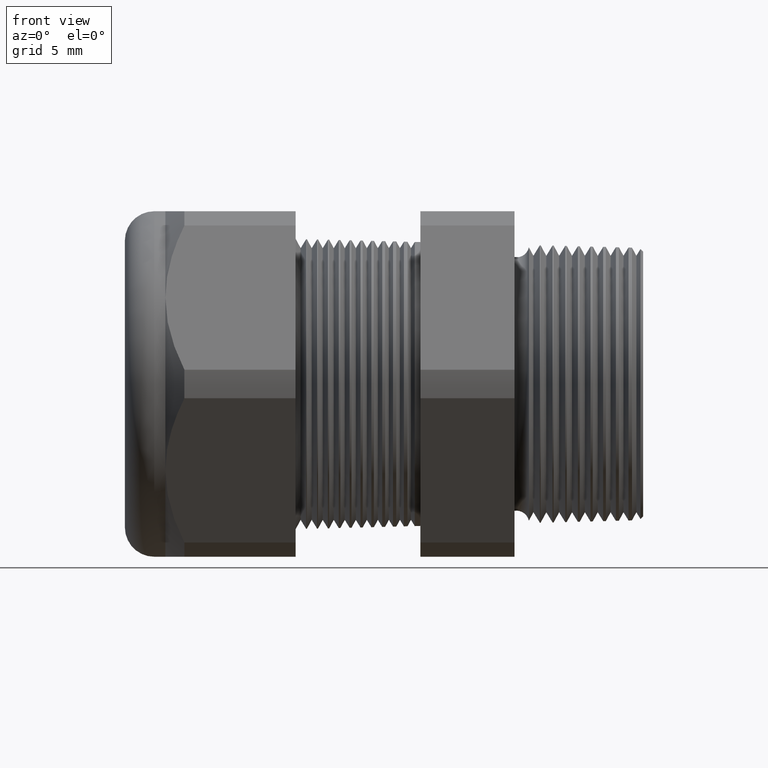
[diagram: clean part render]
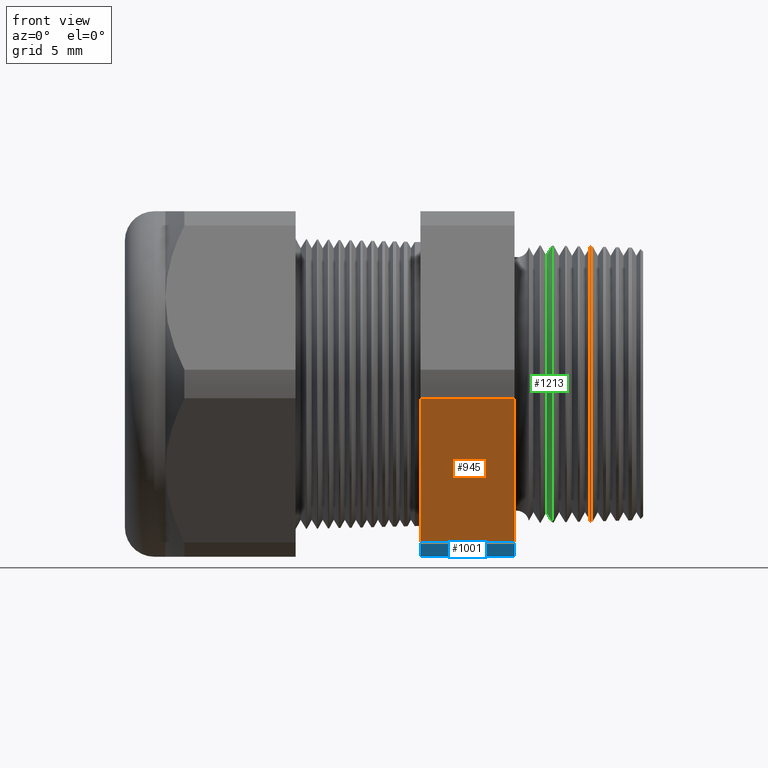
[diagram: same view with three faces highlighted in distinct colors, each labeled with its STEP entity id]
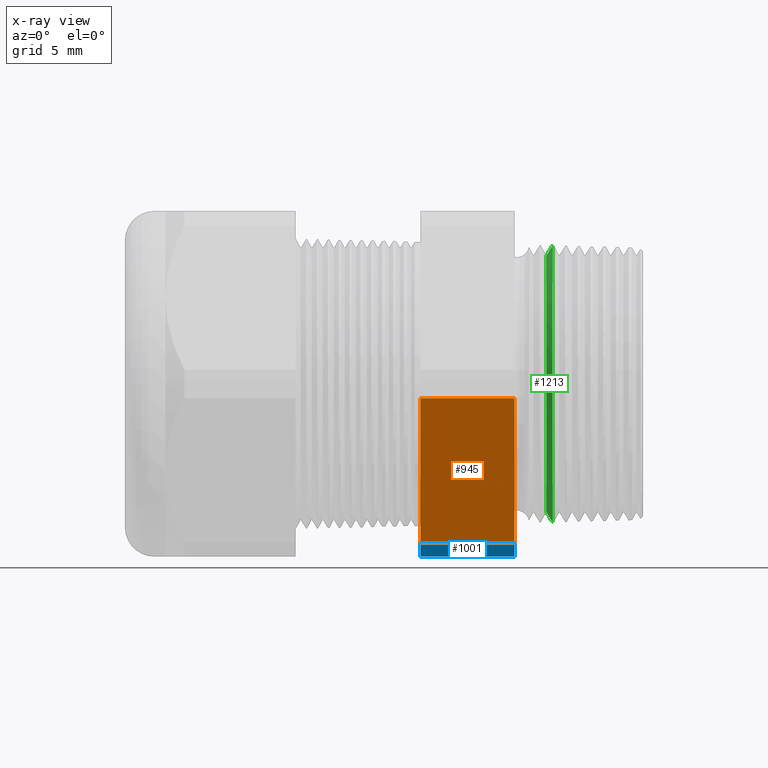
[diagram: x-ray of the same camera — body ghosted, the three highlighted faces saturated]
A machine part, front view with three faces highlighted in distinct colors.
The next image is the same camera in x-ray (body ghosted, the three faces saturated) — at least one of them is partly hidden behind the body in this view.
Their STEP definitions:

[orange] entity #945 — the highlighted planar face has unit normal (0, -0.866, -0.5).
#716 = VERTEX_POINT ( 'NONE', #2981 ) ;
#722 = EDGE_CURVE ( 'NONE', #716, #723, #2970, .T. ) ;
#723 = VERTEX_POINT ( 'NONE', #2966 ) ;
#819 = VERTEX_POINT ( 'NONE', #3174 ) ;
#821 = EDGE_CURVE ( 'NONE', #819, #822, #3173, .T. ) ;
#822 = VERTEX_POINT ( 'NONE', #3169 ) ;
#945 = ADVANCED_FACE ( 'NONE', ( #3356 ), #3355, .T. ) ;
#946 = EDGE_LOOP ( 'NONE', ( #996, #997, #998, #1000 ) ) ;
#996 = ORIENTED_EDGE ( 'NONE', *, *, #1018, .T. ) ;
#997 = ORIENTED_EDGE ( 'NONE', *, *, #821, .F. ) ;
#998 = ORIENTED_EDGE ( 'NONE', *, *, #999, .F. ) ;
#999 = EDGE_CURVE ( 'NONE', #723, #819, #3461, .T. ) ;
#1000 = ORIENTED_EDGE ( 'NONE', *, *, #722, .F. ) ;
#1018 = EDGE_CURVE ( 'NONE', #716, #822, #3438, .T. ) ;
#2667 = DIRECTION ( 'NONE',  ( -1.000000000000000000, 0.0000000000000000000, 0.0000000000000000000 ) ) ;
#2668 = VECTOR ( 'NONE', #2667, 39.37007874015748100 ) ;
#2966 = CARTESIAN_POINT ( 'NONE',  ( -0.3100000000000000000, -0.2938165587564942600, -0.4310947921287053300 ) ) ;
#2967 = DIRECTION ( 'NONE',  ( 0.0000000000000000000, 0.5000000000000001100, -0.8660254037844384900 ) ) ;
#2968 = VECTOR ( 'NONE', #2967, 39.37007874015748900 ) ;
#2969 = CARTESIAN_POINT ( 'NONE',  ( -0.3100000000000000000, -0.1720319397786861700, -0.6420319397786864400 ) ) ;
#2970 = LINE ( 'NONE', #2969, #2968 ) ;
#2981 = CARTESIAN_POINT ( 'NONE',  ( -0.3100000000000000000, -0.5202473208008777700, -0.03890520787129495000 ) ) ;
#3169 = CARTESIAN_POINT ( 'NONE',  ( -0.5659055118110235500, -0.5202473208008777700, -0.03890520787129495000 ) ) ;
#3170 = DIRECTION ( 'NONE',  ( 0.0000000000000000000, -0.5000000000000001100, 0.8660254037844384900 ) ) ;
#3171 = VECTOR ( 'NONE', #3170, 39.37007874015748900 ) ;
#3172 = CARTESIAN_POINT ( 'NONE',  ( -0.5659055118110235500, -0.1720319397786861700, -0.6420319397786864400 ) ) ;
#3173 = LINE ( 'NONE', #3172, #3171 ) ;
#3174 = CARTESIAN_POINT ( 'NONE',  ( -0.5659055118110235500, -0.2938165587564942600, -0.4310947921287053300 ) ) ;
#3351 = DIRECTION ( 'NONE',  ( 0.0000000000000000000, 0.5000000000000001100, -0.8660254037844384900 ) ) ;
#3352 = DIRECTION ( 'NONE',  ( 0.0000000000000000000, -0.8660254037844386000, -0.5000000000000002200 ) ) ;
#3353 = CARTESIAN_POINT ( 'NONE',  ( 0.03999999999999984800, -0.2938165587564944300, -0.4310947921287051600 ) ) ;
#3354 = AXIS2_PLACEMENT_3D ( 'NONE', #3353, #3352, #3351 ) ;
#3355 = PLANE ( 'NONE',  #3354 ) ;
#3356 = FACE_OUTER_BOUND ( 'NONE', #946, .T. ) ;
#3431 = CARTESIAN_POINT ( 'NONE',  ( 0.03999999999999984800, -0.5202473208008777700, -0.03890520787129495000 ) ) ;
#3438 = LINE ( 'NONE', #3431, #2668 ) ;
#3454 = DIRECTION ( 'NONE',  ( -1.000000000000000000, 0.0000000000000000000, 0.0000000000000000000 ) ) ;
#3455 = VECTOR ( 'NONE', #3454, 39.37007874015748100 ) ;
#3456 = CARTESIAN_POINT ( 'NONE',  ( 0.03999999999999984800, -0.2938165587564942600, -0.4310947921287053300 ) ) ;
#3461 = LINE ( 'NONE', #3456, #3455 ) ;

[blue] entity #1001 — the highlighted cylindrical surface (partial cylindrical patch) has radius 13.2512 mm, axis along (-1, 0, 0).
#723 = VERTEX_POINT ( 'NONE', #2966 ) ;
#727 = EDGE_CURVE ( 'NONE', #723, #729, #2963, .T. ) ;
#729 = VERTEX_POINT ( 'NONE', #3012 ) ;
#818 = EDGE_CURVE ( 'NONE', #902, #819, #3116, .T. ) ;
#819 = VERTEX_POINT ( 'NONE', #3174 ) ;
#902 = VERTEX_POINT ( 'NONE', #3280 ) ;
#985 = ORIENTED_EDGE ( 'NONE', *, *, #727, .F. ) ;
#999 = EDGE_CURVE ( 'NONE', #723, #819, #3461, .T. ) ;
#1001 = ADVANCED_FACE ( 'NONE', ( #3453 ), #3451, .T. ) ;
#1002 = EDGE_LOOP ( 'NONE', ( #1003, #1004, #1005, #985 ) ) ;
#1003 = ORIENTED_EDGE ( 'NONE', *, *, #999, .T. ) ;
#1004 = ORIENTED_EDGE ( 'NONE', *, *, #818, .F. ) ;
#1005 = ORIENTED_EDGE ( 'NONE', *, *, #1006, .F. ) ;
#1006 = EDGE_CURVE ( 'NONE', #729, #902, #3452, .T. ) ;
#2955 = DIRECTION ( 'NONE',  ( 0.0000000000000000000, 0.0000000000000000000, -1.000000000000000000 ) ) ;
#2956 = DIRECTION ( 'NONE',  ( 1.000000000000000000, 0.0000000000000000000, 0.0000000000000000000 ) ) ;
#2957 = CARTESIAN_POINT ( 'NONE',  ( -0.3100000000000000000, 0.0000000000000000000, 0.0000000000000000000 ) ) ;
#2958 = AXIS2_PLACEMENT_3D ( 'NONE', #2957, #2956, #2955 ) ;
#2963 = CIRCLE ( 'NONE', #2958, 0.5217000000000000500 ) ;
#2966 = CARTESIAN_POINT ( 'NONE',  ( -0.3100000000000000000, -0.2938165587564942600, -0.4310947921287053300 ) ) ;
#3012 = CARTESIAN_POINT ( 'NONE',  ( -0.3100000000000000000, -0.2264307620443830900, -0.4700000000000000300 ) ) ;
#3113 = DIRECTION ( 'NONE',  ( -1.000000000000000000, 0.0000000000000000000, 0.0000000000000000000 ) ) ;
#3114 = CARTESIAN_POINT ( 'NONE',  ( -0.5659055118110235500, 0.0000000000000000000, 0.0000000000000000000 ) ) ;
#3115 = AXIS2_PLACEMENT_3D ( 'NONE', #3114, #3113, #3175 ) ;
#3116 = CIRCLE ( 'NONE', #3115, 0.5217000000000000500 ) ;
#3174 = CARTESIAN_POINT ( 'NONE',  ( -0.5659055118110235500, -0.2938165587564942600, -0.4310947921287053300 ) ) ;
#3175 = DIRECTION ( 'NONE',  ( 0.0000000000000000000, 0.0000000000000000000, 1.000000000000000000 ) ) ;
#3280 = CARTESIAN_POINT ( 'NONE',  ( -0.5659055118110235500, -0.2264307620443830900, -0.4700000000000000300 ) ) ;
#3444 = DIRECTION ( 'NONE',  ( -1.000000000000000000, 0.0000000000000000000, 0.0000000000000000000 ) ) ;
#3445 = VECTOR ( 'NONE', #3444, 39.37007874015748100 ) ;
#3446 = CARTESIAN_POINT ( 'NONE',  ( 0.03999999999999984800, -0.2264307620443830900, -0.4700000000000000300 ) ) ;
#3447 = DIRECTION ( 'NONE',  ( 0.0000000000000000000, 0.0000000000000000000, 1.000000000000000000 ) ) ;
#3448 = DIRECTION ( 'NONE',  ( -1.000000000000000000, 0.0000000000000000000, 0.0000000000000000000 ) ) ;
#3449 = CARTESIAN_POINT ( 'NONE',  ( 0.03999999999999984800, 0.0000000000000000000, 0.0000000000000000000 ) ) ;
#3450 = AXIS2_PLACEMENT_3D ( 'NONE', #3449, #3448, #3447 ) ;
#3451 = CYLINDRICAL_SURFACE ( 'NONE', #3450, 0.5217000000000000500 ) ;
#3452 = LINE ( 'NONE', #3446, #3445 ) ;
#3453 = FACE_OUTER_BOUND ( 'NONE', #1002, .T. ) ;
#3454 = DIRECTION ( 'NONE',  ( -1.000000000000000000, 0.0000000000000000000, 0.0000000000000000000 ) ) ;
#3455 = VECTOR ( 'NONE', #3454, 39.37007874015748100 ) ;
#3456 = CARTESIAN_POINT ( 'NONE',  ( 0.03999999999999984800, -0.2938165587564942600, -0.4310947921287053300 ) ) ;
#3461 = LINE ( 'NONE', #3456, #3455 ) ;

[green] entity #1213 — the highlighted conical surface has half-angle 58.5 deg.
#455 = VERTEX_POINT ( 'NONE', #2361 ) ;
#491 = VERTEX_POINT ( 'NONE', #2455 ) ;
#510 = VERTEX_POINT ( 'NONE', #2544 ) ;
#521 = EDGE_CURVE ( 'NONE', #455, #522, #2523, .T. ) ;
#522 = VERTEX_POINT ( 'NONE', #2519 ) ;
#548 = EDGE_CURVE ( 'NONE', #510, #491, #2588, .T. ) ;
#1210 = EDGE_CURVE ( 'NONE', #455, #510, #3712, .T. ) ;
#1213 = ADVANCED_FACE ( 'NONE', ( #3707 ), #3706, .T. ) ;
#1214 = EDGE_LOOP ( 'NONE', ( #1215, #1216, #1217, #1218 ) ) ;
#1215 = ORIENTED_EDGE ( 'NONE', *, *, #521, .F. ) ;
#1216 = ORIENTED_EDGE ( 'NONE', *, *, #1210, .T. ) ;
#1217 = ORIENTED_EDGE ( 'NONE', *, *, #548, .T. ) ;
#1218 = ORIENTED_EDGE ( 'NONE', *, *, #4658, .T. ) ;
#2361 = CARTESIAN_POINT ( 'NONE',  ( -0.2234707356790752200, 0.0000000000000000000, 0.3489649185127733400 ) ) ;
#2455 = CARTESIAN_POINT ( 'NONE',  ( -0.2064763869881502400, 4.613209897288197600E-017, -0.3766971750957169300 ) ) ;
#2519 = CARTESIAN_POINT ( 'NONE',  ( -0.2064763869881502400, 0.0000000000000000000, 0.3766971750957169300 ) ) ;
#2520 = DIRECTION ( 'NONE',  ( 0.5224985647159352500, 1.044183048100722500E-016, 0.8526401643541005000 ) ) ;
#2521 = VECTOR ( 'NONE', #2520, 39.37007874015748900 ) ;
#2522 = CARTESIAN_POINT ( 'NONE',  ( -0.2234707356790752200, 4.273587704713848000E-017, 0.3489649185127733400 ) ) ;
#2523 = LINE ( 'NONE', #2522, #2521 ) ;
#2544 = CARTESIAN_POINT ( 'NONE',  ( -0.2234707356790752200, 4.448612179956702900E-017, -0.3489649185127733400 ) ) ;
#2585 = DIRECTION ( 'NONE',  ( 0.5224985647159352500, 0.0000000000000000000, -0.8526401643541005000 ) ) ;
#2586 = VECTOR ( 'NONE', #2585, 39.37007874015748900 ) ;
#2587 = CARTESIAN_POINT ( 'NONE',  ( -0.2234707356790752200, 0.0000000000000000000, -0.3489649185127733400 ) ) ;
#2588 = LINE ( 'NONE', #2587, #2586 ) ;
#3701 = DIRECTION ( 'NONE',  ( 0.0000000000000000000, 0.0000000000000000000, -1.000000000000000000 ) ) ;
#3702 = DIRECTION ( 'NONE',  ( 1.000000000000000000, 0.0000000000000000000, 0.0000000000000000000 ) ) ;
#3703 = CARTESIAN_POINT ( 'NONE',  ( -0.2234707356790752200, 0.0000000000000000000, 0.0000000000000000000 ) ) ;
#3704 = AXIS2_PLACEMENT_3D ( 'NONE', #3703, #3702, #3701 ) ;
#3706 = CONICAL_SURFACE ( 'NONE', #3704, 0.3489649185127733400, 1.021017612416698700 ) ;
#3707 = FACE_OUTER_BOUND ( 'NONE', #1214, .T. ) ;
#3708 = DIRECTION ( 'NONE',  ( 0.0000000000000000000, 0.0000000000000000000, -1.000000000000000000 ) ) ;
#3709 = DIRECTION ( 'NONE',  ( 1.000000000000000000, 0.0000000000000000000, 0.0000000000000000000 ) ) ;
#3710 = CARTESIAN_POINT ( 'NONE',  ( -0.2234707356790752200, 0.0000000000000000000, 0.0000000000000000000 ) ) ;
#3711 = AXIS2_PLACEMENT_3D ( 'NONE', #3710, #3709, #3708 ) ;
#3712 = CIRCLE ( 'NONE', #3711, 0.3489649185127733400 ) ;
#4368 = DIRECTION ( 'NONE',  ( 0.0000000000000000000, 0.0000000000000000000, -1.000000000000000000 ) ) ;
#4369 = DIRECTION ( 'NONE',  ( -1.000000000000000000, 0.0000000000000000000, 0.0000000000000000000 ) ) ;
#4370 = CARTESIAN_POINT ( 'NONE',  ( -0.2064763869881502400, 0.0000000000000000000, 0.0000000000000000000 ) ) ;
#4371 = AXIS2_PLACEMENT_3D ( 'NONE', #4370, #4369, #4368 ) ;
#4375 = CIRCLE ( 'NONE', #4371, 0.3766971750957169300 ) ;
#4658 = EDGE_CURVE ( 'NONE', #491, #522, #4375, .T. ) ;